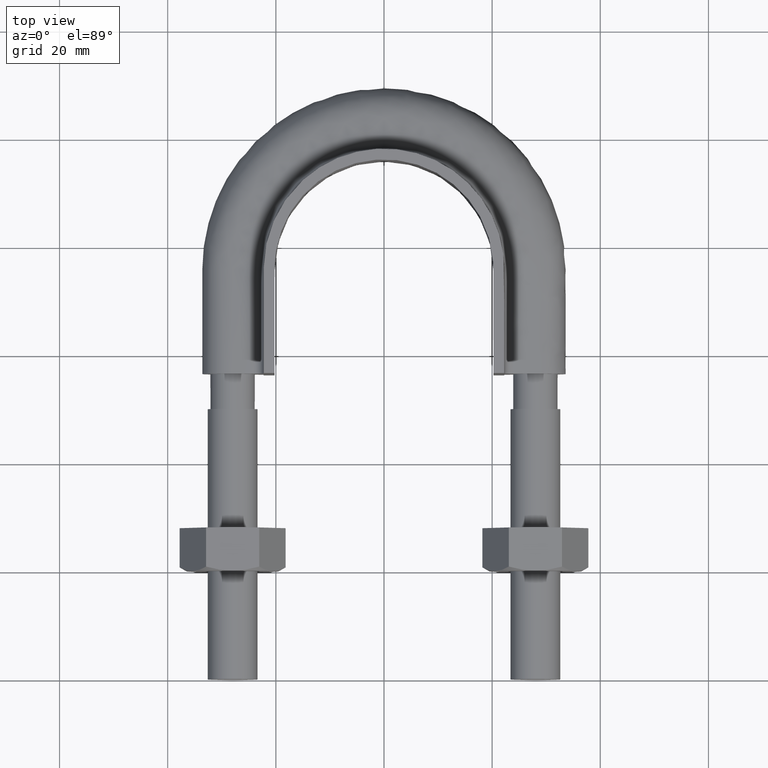
[diagram: clean part render]
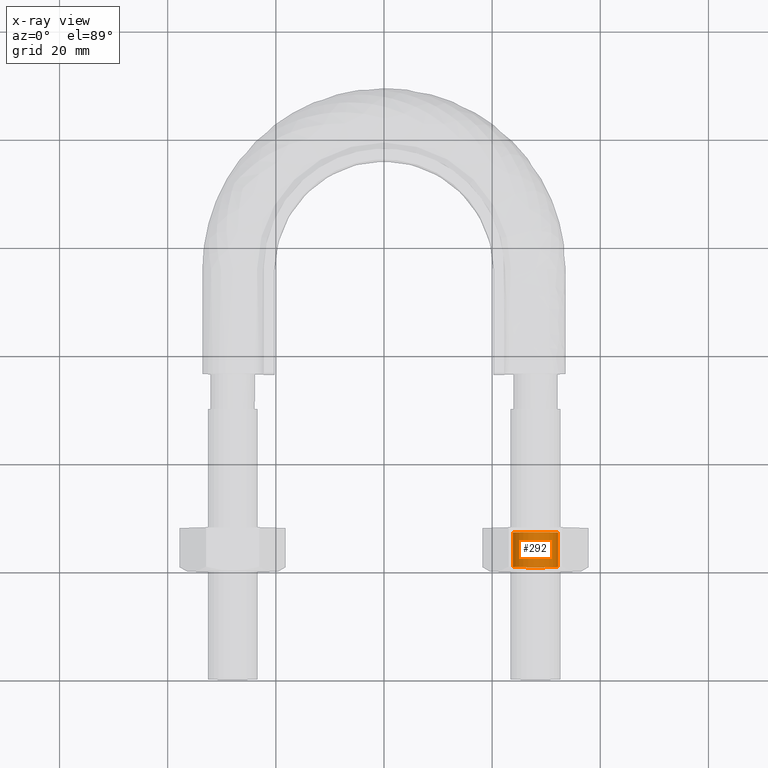
[diagram: x-ray — body ghosted, one internal face saturated and labeled with its STEP entity id]
A machine part, top view, then the same camera in x-ray: the body is ghosted and one INTERNAL B-rep face — a face not visible from any outside direction — is saturated and labeled: STEP entity #292.
In plain terms, the highlighted cylindrical surface (bore or boss wall) has radius 4.188 mm, axis along (-0, -1, -0).
Its self-contained STEP definition (entity closure, byte-faithful):
#292 = ADVANCED_FACE( '', ( #456, #457 ), #458, .F. );
#456 = FACE_OUTER_BOUND( '', #1299, .T. );
#457 = FACE_OUTER_BOUND( '', #1300, .T. );
#458 = CYLINDRICAL_SURFACE( '', #1301, 4.18799999999791 );
#1299 = EDGE_LOOP( '', ( #1829 ) );
#1300 = EDGE_LOOP( '', ( #1830 ) );
#1301 = AXIS2_PLACEMENT_3D( '', #1831, #1832, #1833 );
#1829 = ORIENTED_EDGE( '', *, *, #1988, .T. );
#1830 = ORIENTED_EDGE( '', *, *, #1987, .F. );
#1831 = CARTESIAN_POINT( '', ( 28.0000000000000, 27.9999999999986, 5.93893424022371E-015 ) );
#1832 = DIRECTION( '', ( -1.22460635382238E-016, -1.00000000000000, -1.83690953073357E-016 ) );
#1833 = DIRECTION( '', ( -0.866025403784400, 1.42085446679058E-017, 0.500000000000068 ) );
#1987 = EDGE_CURVE( '', #2231, #2231, #2232, .T. );
#1988 = EDGE_CURVE( '', #2233, #2233, #2234, .T. );
#2231 = VERTEX_POINT( '', #2869 );
#2232 = CIRCLE( '', #2870, 4.18799999999791 );
#2233 = VERTEX_POINT( '', #2871 );
#2234 = CIRCLE( '', #2872, 4.18799999999791 );
#2869 = CARTESIAN_POINT( '', ( 24.3730856089527, 20.8119999999999, 2.09399999999924 ) );
#2870 = AXIS2_PLACEMENT_3D( '', #3101, #3102, #3103 );
#2871 = CARTESIAN_POINT( '', ( 24.3730856089527, 27.1879999999987, 2.09399999999925 ) );
#2872 = AXIS2_PLACEMENT_3D( '', #3104, #3105, #3106 );
#3101 = CARTESIAN_POINT( '', ( 28.0000000000000, 20.8119999999999, 4.61856366953267E-015 ) );
#3102 = DIRECTION( '', ( 1.22460635382238E-016, 1.00000000000000, 1.83690953073357E-016 ) );
#3103 = DIRECTION( '', ( -0.866025403784400, 1.42085446679058E-017, 0.500000000000068 ) );
#3104 = CARTESIAN_POINT( '', ( 28.0000000000000, 27.1879999999987, 5.78977718632818E-015 ) );
#3105 = DIRECTION( '', ( 1.22460635382238E-016, 1.00000000000000, 1.83690953073357E-016 ) );
#3106 = DIRECTION( '', ( -0.866025403784400, 1.42085446679058E-017, 0.500000000000068 ) );